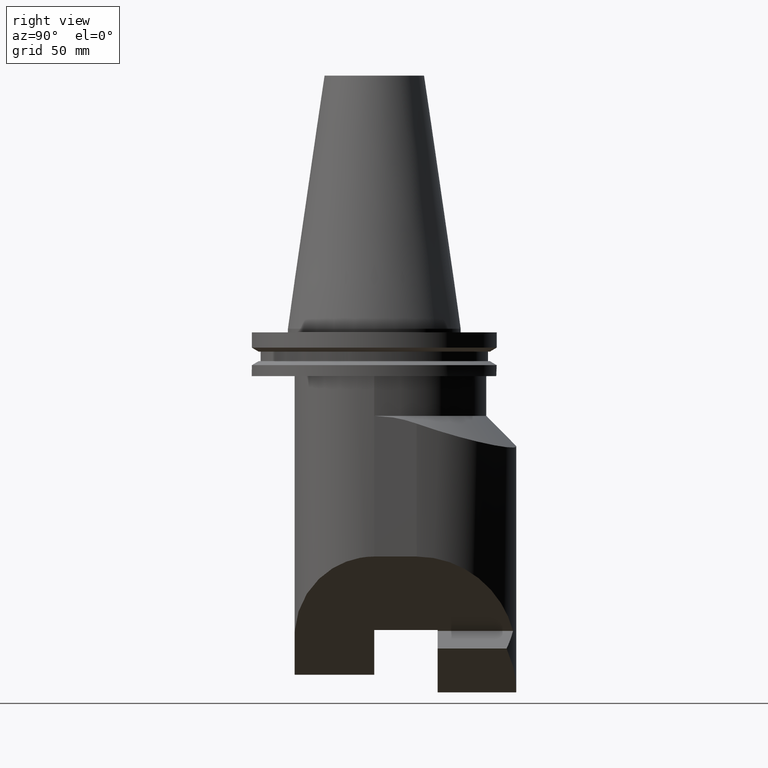
[diagram: clean part render]
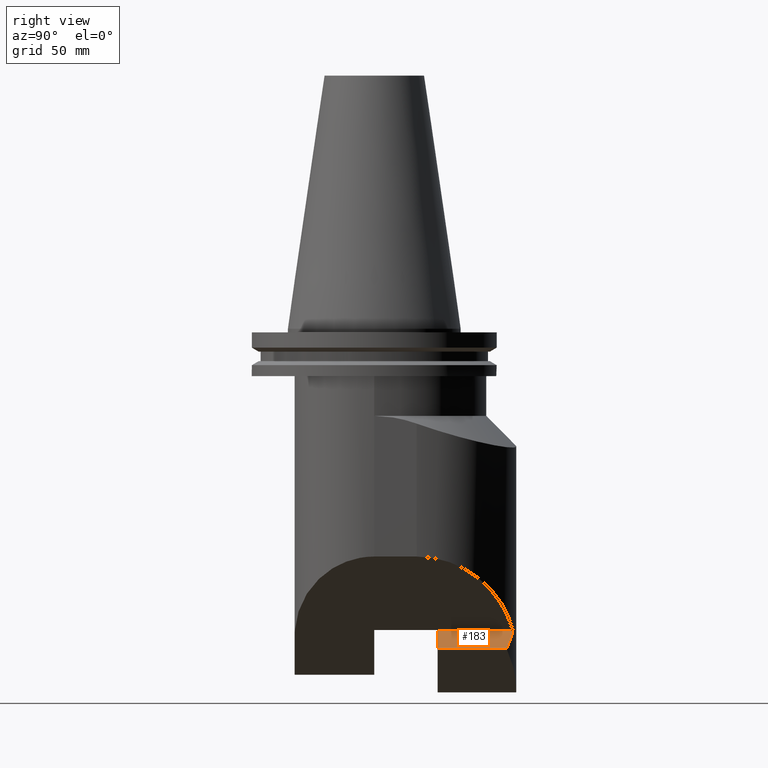
[diagram: same view with one face highlighted and labeled with its STEP entity id]
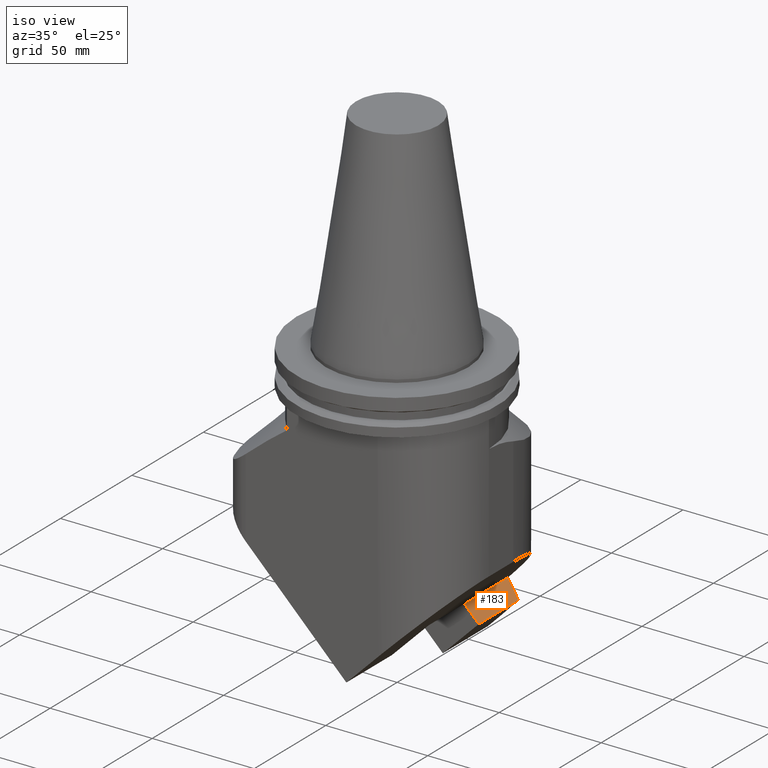
[diagram: same view with one face highlighted and labeled with its STEP entity id]
A machine part, right view. The second image highlights one B-rep face of the part: STEP entity #183.
A second angle (iso view) of the same face is appended — the face is thin or edge-on in the first view.
In plain terms, the highlighted planar face has unit normal (-0.7071, -0, -0.7071).
Its self-contained STEP definition (entity closure, byte-faithful):
#183=ADVANCED_FACE('Unnamed[1]',(#466),#467,.F.);
#204=EDGE_CURVE('Unnamed[1]',#442,#501,#502,.T.);
#294=EDGE_CURVE('Unnamed[1]',#551,#501,#620,.T.);
#307=EDGE_CURVE('Unnamed[1]',#606,#442,#635,.T.);
#331=EDGE_CURVE('Unnamed[1]',#606,#551,#666,.T.);
#442=VERTEX_POINT('',#807);
#466=FACE_OUTER_BOUND('',#838,.T.);
#467=PLANE('',#839);
#501=VERTEX_POINT('',#886);
#502=ELLIPSE('',#887,56.5685424481528,40.0);
#551=VERTEX_POINT('',#1009);
#606=VERTEX_POINT('',#1106);
#620=LINE('',#1139,#1140);
#635=LINE('',#1163,#1164);
#666=LINE('',#1205,#1206);
#807=CARTESIAN_POINT('',(15.1358910394406,55.6944920219472,-121.321973342197));
#838=EDGE_LOOP('',(#1378,#1379,#1380,#1381));
#839=AXIS2_PLACEMENT_3D('',#1382,#1383,#1384);
#886=CARTESIAN_POINT('',(22.2069588544695,53.1098403067711,-128.393041145533));
#887=AXIS2_PLACEMENT_3D('',#1414,#1415,#1416);
#1009=CARTESIAN_POINT('',(22.2069588544695,25.3999999999997,-128.393041145533));
#1106=CARTESIAN_POINT('',(15.1358910394406,25.3999999999998,-121.321973342197));
#1139=CARTESIAN_POINT('',(22.2069588544695,-3.25883342582716E-014,-128.393041145533));
#1140=VECTOR('',#1530,1.0);
#1163=CARTESIAN_POINT('',(15.1358910394406,-2.97193077165473E-014,-121.321973342197));
#1164=VECTOR('',#1549,1.0);
#1205=CARTESIAN_POINT('',(14.9006787289166,25.3999999999998,-121.086761032062));
#1206=VECTOR('',#1602,1.0);
#1378=ORIENTED_EDGE('',*,*,#331,.T.);
#1379=ORIENTED_EDGE('',*,*,#294,.T.);
#1380=ORIENTED_EDGE('',*,*,#204,.F.);
#1381=ORIENTED_EDGE('',*,*,#307,.F.);
#1382=CARTESIAN_POINT('',(18.671424946955,-3.11538209874094E-014,-124.857507243865));
#1383=DIRECTION('',(-0.707106780601909,-2.71158376702655E-017,-0.707106781771186));
#1384=DIRECTION('',(-0.707106781771186,2.86902654281282E-016,0.707106780601909));
#1414=CARTESIAN_POINT('',(4.99999999999798,16.9999999999998,-111.186082319515));
#1415=DIRECTION('',(-0.707106780601909,-2.71158376702656E-017,-0.707106781771186));
#1416=DIRECTION('',(-0.707106781771186,3.73498259976429E-016,0.707106780601909));
#1530=DIRECTION('',(1.83697019872103E-016,1.0,-2.22044604925031E-016));
#1549=DIRECTION('',(1.83697019872103E-016,1.0,-2.22044604925031E-016));
#1602=DIRECTION('',(0.707106781771186,-3.02444589768515E-015,-0.707106780601909));